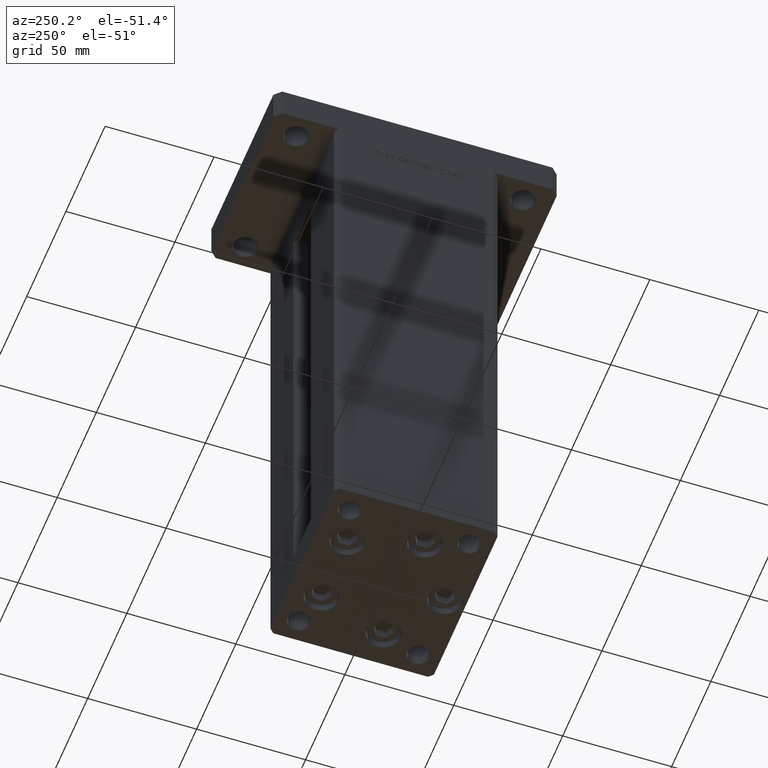
[diagram: clean part render]
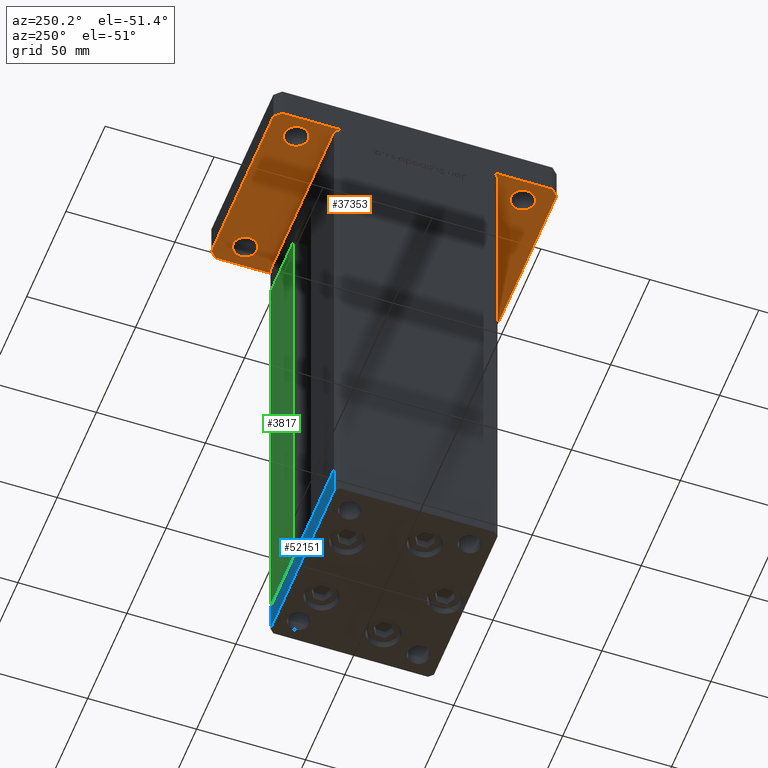
[diagram: same view with three faces highlighted in distinct colors, each labeled with its STEP entity id]
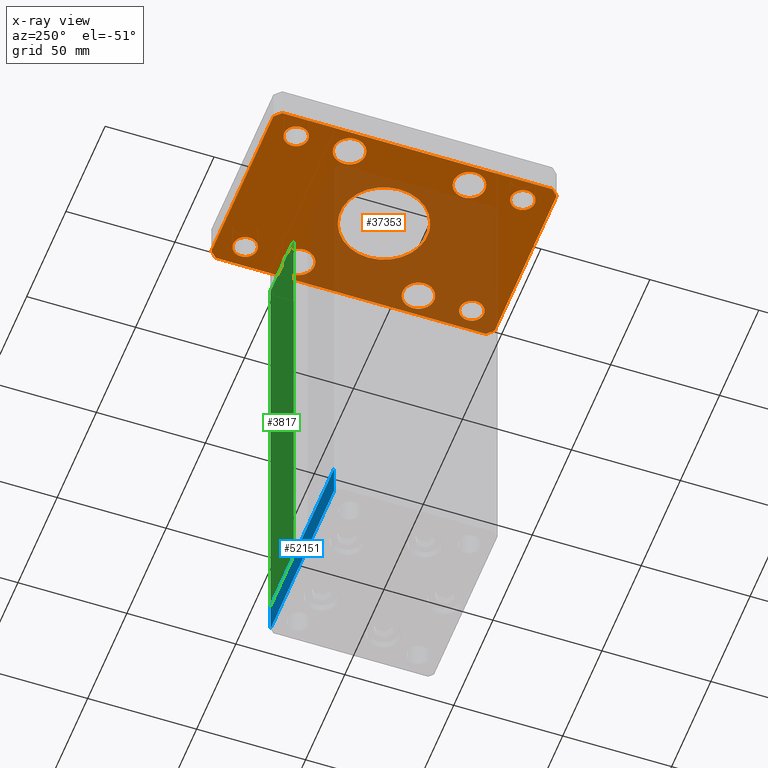
[diagram: x-ray of the same camera — body ghosted, the three highlighted faces saturated]
A machine part, auxiliary view with three faces highlighted in distinct colors.
The next image is the same camera in x-ray (body ghosted, the three faces saturated) — at least one of them is partly hidden behind the body in this view.
Their STEP definitions:

[orange] entity #37353 — the highlighted planar face has unit normal (0, 0, 1).
#340 = CARTESIAN_POINT ( 'NONE',  ( 42.50000000000000000, 62.00000000000000711, 0.000000000000000000 ) ) ;
#404 = ORIENTED_EDGE ( 'NONE', *, *, #51957, .F. ) ;
#481 = FACE_BOUND ( 'NONE', #19865, .T. ) ;
#547 = VERTEX_POINT ( 'NONE', #52257 ) ;
#686 = CARTESIAN_POINT ( 'NONE',  ( 32.50000000000000000, 51.99999999999999289, 0.000000000000000000 ) ) ;
#838 = LINE ( 'NONE', #25535, #50679 ) ;
#1064 = ORIENTED_EDGE ( 'NONE', *, *, #29462, .T. ) ;
#1236 = EDGE_CURVE ( 'NONE', #53336, #14336, #29632, .T. ) ;
#1339 = LINE ( 'NONE', #50941, #39962 ) ;
#1768 = VERTEX_POINT ( 'NONE', #49017 ) ;
#2053 = EDGE_LOOP ( 'NONE', ( #36616, #38374 ) ) ;
#2287 = CARTESIAN_POINT ( 'NONE',  ( -37.99999999999997868, -52.00000000000000711, 0.000000000000000000 ) ) ;
#3173 = VERTEX_POINT ( 'NONE', #51089 ) ;
#3426 = DIRECTION ( 'NONE',  ( 1.000000000000000000, 0.000000000000000000, 0.000000000000000000 ) ) ;
#3427 = CARTESIAN_POINT ( 'NONE',  ( -42.50000000000002132, 62.00000000000000711, 0.000000000000000000 ) ) ;
#4056 = VECTOR ( 'NONE', #52729, 1000.000000000000000 ) ;
#4216 = CARTESIAN_POINT ( 'NONE',  ( 39.75000000000000000, 27.50000000000000000, 0.000000000000000000 ) ) ;
#4369 = ORIENTED_EDGE ( 'NONE', *, *, #1236, .F. ) ;
#4410 = DIRECTION ( 'NONE',  ( 0.000000000000000000, 0.000000000000000000, 1.000000000000000000 ) ) ;
#4551 = FACE_BOUND ( 'NONE', #24015, .T. ) ;
#4695 = CIRCLE ( 'NONE', #46198, 20.00000000000000000 ) ;
#4732 = VERTEX_POINT ( 'NONE', #4216 ) ;
#5001 = VERTEX_POINT ( 'NONE', #33158 ) ;
#5674 = DIRECTION ( 'NONE',  ( -0.7071067811865466846, -0.7071067811865483499, 0.000000000000000000 ) ) ;
#6491 = EDGE_CURVE ( 'NONE', #4732, #37087, #15779, .T. ) ;
#6647 = CARTESIAN_POINT ( 'NONE',  ( 32.50000000000000000, 27.50000000000000000, 0.000000000000000000 ) ) ;
#6673 = DIRECTION ( 'NONE',  ( 0.000000000000000000, 0.000000000000000000, 1.000000000000000000 ) ) ;
#7480 = CARTESIAN_POINT ( 'NONE',  ( -32.50000000000000000, -27.50000000000000000, 0.000000000000000000 ) ) ;
#7625 = CARTESIAN_POINT ( 'NONE',  ( -39.75000000000000711, 27.50000000000000000, 0.000000000000000000 ) ) ;
#7919 = CARTESIAN_POINT ( 'NONE',  ( 37.99999999999999289, 51.99999999999999289, 0.000000000000000000 ) ) ;
#7941 = EDGE_CURVE ( 'NONE', #21670, #11944, #9007, .T. ) ;
#7995 = AXIS2_PLACEMENT_3D ( 'NONE', #7480, #6673, #15081 ) ;
#8135 = ORIENTED_EDGE ( 'NONE', *, *, #6491, .T. ) ;
#8566 = CARTESIAN_POINT ( 'NONE',  ( -32.49999999999997868, -52.00000000000000711, 0.000000000000000000 ) ) ;
#8574 = EDGE_CURVE ( 'NONE', #3173, #10618, #21969, .T. ) ;
#8907 = CARTESIAN_POINT ( 'NONE',  ( 39.50000000000001421, -64.99999999999988631, 0.000000000000000000 ) ) ;
#8965 = EDGE_CURVE ( 'NONE', #1768, #5001, #29743, .T. ) ;
#9007 = LINE ( 'NONE', #28810, #37518 ) ;
#9149 = ORIENTED_EDGE ( 'NONE', *, *, #32134, .F. ) ;
#9278 = DIRECTION ( 'NONE',  ( -1.000000000000000000, 0.000000000000000000, 0.000000000000000000 ) ) ;
#9310 = CARTESIAN_POINT ( 'NONE',  ( 25.25000000000000000, -27.50000000000000000, 0.000000000000000000 ) ) ;
#9397 = EDGE_LOOP ( 'NONE', ( #45120, #28493 ) ) ;
#10311 = DIRECTION ( 'NONE',  ( 0.000000000000000000, 0.000000000000000000, 1.000000000000000000 ) ) ;
#10404 = ORIENTED_EDGE ( 'NONE', *, *, #38225, .T. ) ;
#10524 = CIRCLE ( 'NONE', #45145, 7.249999999999999112 ) ;
#10527 = EDGE_LOOP ( 'NONE', ( #21430, #8135 ) ) ;
#10618 = VERTEX_POINT ( 'NONE', #7919 ) ;
#10631 = CARTESIAN_POINT ( 'NONE',  ( -26.99999999999998579, -52.00000000000000711, 0.000000000000000000 ) ) ;
#10772 = EDGE_CURVE ( 'NONE', #12520, #14753, #4695, .T. ) ;
#10983 = DIRECTION ( 'NONE',  ( 1.000000000000000000, 0.000000000000000000, 0.000000000000000000 ) ) ;
#11502 = EDGE_CURVE ( 'NONE', #547, #27026, #24635, .T. ) ;
#11562 = CARTESIAN_POINT ( 'NONE',  ( 32.49999999999997868, -52.00000000000000711, 0.000000000000000000 ) ) ;
#11578 = DIRECTION ( 'NONE',  ( -1.000000000000000000, 0.000000000000000000, 0.000000000000000000 ) ) ;
#11658 = ORIENTED_EDGE ( 'NONE', *, *, #8965, .T. ) ;
#11944 = VERTEX_POINT ( 'NONE', #27112 ) ;
#11948 = CARTESIAN_POINT ( 'NONE',  ( 42.50000000000000000, 62.00000000000000711, 0.000000000000000000 ) ) ;
#12239 = EDGE_CURVE ( 'NONE', #27026, #547, #27142, .T. ) ;
#12255 = VECTOR ( 'NONE', #39501, 1000.000000000000114 ) ;
#12404 = FACE_BOUND ( 'NONE', #50821, .T. ) ;
#12409 = LINE ( 'NONE', #28692, #43780 ) ;
#12520 = VERTEX_POINT ( 'NONE', #50966 ) ;
#12877 = VERTEX_POINT ( 'NONE', #8907 ) ;
#12933 = VERTEX_POINT ( 'NONE', #51959 ) ;
#12985 = EDGE_CURVE ( 'NONE', #16890, #27870, #53080, .T. ) ;
#13148 = ORIENTED_EDGE ( 'NONE', *, *, #50319, .T. ) ;
#13221 = DIRECTION ( 'NONE',  ( 1.000000000000000000, 0.000000000000000000, -0.000000000000000000 ) ) ;
#13290 = AXIS2_PLACEMENT_3D ( 'NONE', #686, #13425, #50814 ) ;
#13425 = DIRECTION ( 'NONE',  ( 0.000000000000000000, 0.000000000000000000, 1.000000000000000000 ) ) ;
#13442 = AXIS2_PLACEMENT_3D ( 'NONE', #35190, #22724, #26267 ) ;
#14336 = VERTEX_POINT ( 'NONE', #51594 ) ;
#14555 = DIRECTION ( 'NONE',  ( 1.000000000000000000, 0.000000000000000000, 0.000000000000000000 ) ) ;
#14753 = VERTEX_POINT ( 'NONE', #36014 ) ;
#15081 = DIRECTION ( 'NONE',  ( 1.000000000000000000, 0.000000000000000000, 0.000000000000000000 ) ) ;
#15181 = DIRECTION ( 'NONE',  ( 1.000000000000000000, 0.000000000000000000, 0.000000000000000000 ) ) ;
#15628 = AXIS2_PLACEMENT_3D ( 'NONE', #39396, #18003, #22872 ) ;
#15779 = CIRCLE ( 'NONE', #36580, 7.249999999999999112 ) ;
#15919 = EDGE_CURVE ( 'NONE', #27870, #16890, #47131, .T. ) ;
#16052 = CARTESIAN_POINT ( 'NONE',  ( -32.50000000000000000, 52.00000000000000000, 0.000000000000000000 ) ) ;
#16136 = ORIENTED_EDGE ( 'NONE', *, *, #15919, .T. ) ;
#16154 = DIRECTION ( 'NONE',  ( 1.000000000000000000, 0.000000000000000000, 0.000000000000000000 ) ) ;
#16172 = DIRECTION ( 'NONE',  ( 1.000000000000000000, 0.000000000000000000, 0.000000000000000000 ) ) ;
#16756 = PLANE ( 'NONE',  #44283 ) ;
#16877 = ORIENTED_EDGE ( 'NONE', *, *, #22732, .F. ) ;
#16879 = CIRCLE ( 'NONE', #13442, 5.499999999999991118 ) ;
#16890 = VERTEX_POINT ( 'NONE', #7625 ) ;
#17129 = DIRECTION ( 'NONE',  ( 2.238352872228137677E-16, -1.000000000000000000, 0.000000000000000000 ) ) ;
#17443 = DIRECTION ( 'NONE',  ( 1.000000000000000000, 0.000000000000000000, 0.000000000000000000 ) ) ;
#17669 = AXIS2_PLACEMENT_3D ( 'NONE', #16052, #52634, #44781 ) ;
#18003 = DIRECTION ( 'NONE',  ( 0.000000000000000000, 0.000000000000000000, 1.000000000000000000 ) ) ;
#18078 = ORIENTED_EDGE ( 'NONE', *, *, #52818, .F. ) ;
#18309 = EDGE_CURVE ( 'NONE', #10618, #3173, #16879, .T. ) ;
#18358 = CARTESIAN_POINT ( 'NONE',  ( -32.50000000000000711, 27.50000000000000000, 0.000000000000000000 ) ) ;
#19144 = DIRECTION ( 'NONE',  ( 1.000000000000000000, 0.000000000000000000, 0.000000000000000000 ) ) ;
#19257 = DIRECTION ( 'NONE',  ( 0.000000000000000000, 0.000000000000000000, 1.000000000000000000 ) ) ;
#19721 = CARTESIAN_POINT ( 'NONE',  ( -25.25000000000000711, 27.50000000000000000, 0.000000000000000000 ) ) ;
#19860 = EDGE_LOOP ( 'NONE', ( #10404, #11658 ) ) ;
#19865 = EDGE_LOOP ( 'NONE', ( #41527, #23424 ) ) ;
#20193 = AXIS2_PLACEMENT_3D ( 'NONE', #42919, #19257, #15181 ) ;
#20198 = AXIS2_PLACEMENT_3D ( 'NONE', #34913, #27318, #42773 ) ;
#20259 = CARTESIAN_POINT ( 'NONE',  ( 0.000000000000000000, 0.000000000000000000, 0.000000000000000000 ) ) ;
#20284 = ORIENTED_EDGE ( 'NONE', *, *, #42906, .T. ) ;
#20389 = VECTOR ( 'NONE', #45391, 1000.000000000000000 ) ;
#20393 = ORIENTED_EDGE ( 'NONE', *, *, #47693, .T. ) ;
#20825 = FACE_BOUND ( 'NONE', #40674, .T. ) ;
#21430 = ORIENTED_EDGE ( 'NONE', *, *, #32643, .T. ) ;
#21670 = VERTEX_POINT ( 'NONE', #37706 ) ;
#21969 = CIRCLE ( 'NONE', #13290, 5.499999999999991118 ) ;
#22264 = DIRECTION ( 'NONE',  ( 1.000000000000000000, 0.000000000000000000, 0.000000000000000000 ) ) ;
#22340 = ORIENTED_EDGE ( 'NONE', *, *, #7941, .F. ) ;
#22379 = EDGE_LOOP ( 'NONE', ( #47482, #16136 ) ) ;
#22438 = DIRECTION ( 'NONE',  ( 0.000000000000000000, 0.000000000000000000, 1.000000000000000000 ) ) ;
#22724 = DIRECTION ( 'NONE',  ( 0.000000000000000000, 0.000000000000000000, 1.000000000000000000 ) ) ;
#22732 = EDGE_CURVE ( 'NONE', #14336, #41851, #28367, .T. ) ;
#22870 = VERTEX_POINT ( 'NONE', #2287 ) ;
#22872 = DIRECTION ( 'NONE',  ( 1.000000000000000000, 0.000000000000000000, 0.000000000000000000 ) ) ;
#22977 = LINE ( 'NONE', #31359, #12255 ) ;
#23424 = ORIENTED_EDGE ( 'NONE', *, *, #11502, .T. ) ;
#23486 = CARTESIAN_POINT ( 'NONE',  ( 39.50000000000002842, 65.00000000000002842, 0.000000000000000000 ) ) ;
#23689 = AXIS2_PLACEMENT_3D ( 'NONE', #29095, #4410, #17443 ) ;
#24015 = EDGE_LOOP ( 'NONE', ( #34606, #46750 ) ) ;
#24467 = ORIENTED_EDGE ( 'NONE', *, *, #51462, .F. ) ;
#24635 = CIRCLE ( 'NONE', #50580, 7.249999999999999112 ) ;
#24781 = DIRECTION ( 'NONE',  ( 0.000000000000000000, 0.000000000000000000, 1.000000000000000000 ) ) ;
#25023 = DIRECTION ( 'NONE',  ( 0.7071067811865483499, -0.7071067811865466846, 0.000000000000000000 ) ) ;
#25535 = CARTESIAN_POINT ( 'NONE',  ( -42.50000000000002132, 62.00000000000000711, 0.000000000000000000 ) ) ;
#25634 = VERTEX_POINT ( 'NONE', #38176 ) ;
#26267 = DIRECTION ( 'NONE',  ( 1.000000000000000000, 0.000000000000000000, 0.000000000000000000 ) ) ;
#26485 = AXIS2_PLACEMENT_3D ( 'NONE', #11562, #10311, #3426 ) ;
#26708 = CARTESIAN_POINT ( 'NONE',  ( -32.50000000000000000, 52.00000000000000000, 0.000000000000000000 ) ) ;
#27026 = VERTEX_POINT ( 'NONE', #9310 ) ;
#27112 = CARTESIAN_POINT ( 'NONE',  ( -39.50000000000000000, -65.00000000000000000, 0.000000000000000000 ) ) ;
#27142 = CIRCLE ( 'NONE', #40083, 7.249999999999999112 ) ;
#27236 = VERTEX_POINT ( 'NONE', #53162 ) ;
#27259 = CARTESIAN_POINT ( 'NONE',  ( -39.50000000000003553, 65.00000000000000000, 0.000000000000000000 ) ) ;
#27289 = DIRECTION ( 'NONE',  ( 0.000000000000000000, 0.000000000000000000, 1.000000000000000000 ) ) ;
#27304 = DIRECTION ( 'NONE',  ( 0.000000000000000000, 0.000000000000000000, 1.000000000000000000 ) ) ;
#27318 = DIRECTION ( 'NONE',  ( 0.000000000000000000, 0.000000000000000000, 1.000000000000000000 ) ) ;
#27870 = VERTEX_POINT ( 'NONE', #19721 ) ;
#28053 = CIRCLE ( 'NONE', #40189, 20.00000000000000000 ) ;
#28251 = CIRCLE ( 'NONE', #47316, 5.499999999999994671 ) ;
#28367 = LINE ( 'NONE', #23486, #4056 ) ;
#28493 = ORIENTED_EDGE ( 'NONE', *, *, #10772, .F. ) ;
#28622 = ORIENTED_EDGE ( 'NONE', *, *, #37173, .F. ) ;
#28687 = FACE_OUTER_BOUND ( 'NONE', #42948, .T. ) ;
#28692 = CARTESIAN_POINT ( 'NONE',  ( 42.50000000000000000, -61.99999999999988631, 0.000000000000000000 ) ) ;
#28810 = CARTESIAN_POINT ( 'NONE',  ( -42.49999999999999289, -62.00000000000001421, 0.000000000000000000 ) ) ;
#29095 = CARTESIAN_POINT ( 'NONE',  ( -32.50000000000000000, -27.50000000000000000, 0.000000000000000000 ) ) ;
#29462 = EDGE_CURVE ( 'NONE', #12933, #34398, #33835, .T. ) ;
#29503 = CARTESIAN_POINT ( 'NONE',  ( -27.00000000000000711, 52.00000000000000000, 0.000000000000000000 ) ) ;
#29632 = LINE ( 'NONE', #340, #35574 ) ;
#29743 = CIRCLE ( 'NONE', #23689, 7.249999999999999112 ) ;
#30489 = DIRECTION ( 'NONE',  ( 0.000000000000000000, 0.000000000000000000, 1.000000000000000000 ) ) ;
#30798 = AXIS2_PLACEMENT_3D ( 'NONE', #8566, #45704, #16172 ) ;
#31359 = CARTESIAN_POINT ( 'NONE',  ( 39.50000000000001421, -64.99999999999988631, 0.000000000000000000 ) ) ;
#32027 = CARTESIAN_POINT ( 'NONE',  ( 37.99999999999997868, -52.00000000000000711, 0.000000000000000000 ) ) ;
#32134 = EDGE_CURVE ( 'NONE', #12877, #25634, #22977, .T. ) ;
#32643 = EDGE_CURVE ( 'NONE', #37087, #4732, #10524, .T. ) ;
#33158 = CARTESIAN_POINT ( 'NONE',  ( -39.75000000000000000, -27.50000000000000000, 0.000000000000000000 ) ) ;
#33820 = FACE_BOUND ( 'NONE', #2053, .T. ) ;
#33835 = CIRCLE ( 'NONE', #15628, 5.499999999999998224 ) ;
#34398 = VERTEX_POINT ( 'NONE', #32027 ) ;
#34606 = ORIENTED_EDGE ( 'NONE', *, *, #47853, .T. ) ;
#34913 = CARTESIAN_POINT ( 'NONE',  ( -32.50000000000000711, 27.50000000000000000, 0.000000000000000000 ) ) ;
#34930 = VERTEX_POINT ( 'NONE', #3427 ) ;
#34948 = CIRCLE ( 'NONE', #17669, 5.499999999999994671 ) ;
#35190 = CARTESIAN_POINT ( 'NONE',  ( 32.50000000000000000, 51.99999999999999289, 0.000000000000000000 ) ) ;
#35574 = VECTOR ( 'NONE', #45607, 1000.000000000000000 ) ;
#35931 = DIRECTION ( 'NONE',  ( 0.000000000000000000, 0.000000000000000000, 1.000000000000000000 ) ) ;
#36014 = CARTESIAN_POINT ( 'NONE',  ( -20.00000000000000000, 0.000000000000000000, 0.000000000000000000 ) ) ;
#36580 = AXIS2_PLACEMENT_3D ( 'NONE', #6647, #35931, #10983 ) ;
#36616 = ORIENTED_EDGE ( 'NONE', *, *, #8574, .T. ) ;
#37087 = VERTEX_POINT ( 'NONE', #42547 ) ;
#37173 = EDGE_CURVE ( 'NONE', #41851, #34930, #1339, .T. ) ;
#37353 = ADVANCED_FACE ( 'NONE', ( #37904, #28687, #4551, #33820, #12404, #40873, #481, #45201, #53335, #20825 ), #16756, .F. ) ;
#37368 = DIRECTION ( 'NONE',  ( 0.000000000000000000, 1.000000000000000000, 0.000000000000000000 ) ) ;
#37518 = VECTOR ( 'NONE', #25023, 1000.000000000000000 ) ;
#37706 = CARTESIAN_POINT ( 'NONE',  ( -42.49999999999999289, -62.00000000000001421, 0.000000000000000000 ) ) ;
#37904 = FACE_BOUND ( 'NONE', #9397, .T. ) ;
#38015 = VERTEX_POINT ( 'NONE', #29503 ) ;
#38021 = DIRECTION ( 'NONE',  ( 0.000000000000000000, 0.000000000000000000, -1.000000000000000000 ) ) ;
#38176 = CARTESIAN_POINT ( 'NONE',  ( 42.50000000000000000, -61.99999999999988631, 0.000000000000000000 ) ) ;
#38225 = EDGE_CURVE ( 'NONE', #5001, #1768, #48663, .T. ) ;
#38374 = ORIENTED_EDGE ( 'NONE', *, *, #18309, .T. ) ;
#39396 = CARTESIAN_POINT ( 'NONE',  ( 32.49999999999997868, -52.00000000000000711, 0.000000000000000000 ) ) ;
#39501 = DIRECTION ( 'NONE',  ( 0.7071067811865459074, 0.7071067811865491270, 0.000000000000000000 ) ) ;
#39962 = VECTOR ( 'NONE', #5674, 1000.000000000000000 ) ;
#40083 = AXIS2_PLACEMENT_3D ( 'NONE', #49221, #27304, #16154 ) ;
#40189 = AXIS2_PLACEMENT_3D ( 'NONE', #20259, #43843, #11578 ) ;
#40637 = EDGE_CURVE ( 'NONE', #51333, #22870, #43566, .T. ) ;
#40674 = EDGE_LOOP ( 'NONE', ( #1064, #20393 ) ) ;
#40873 = FACE_BOUND ( 'NONE', #19860, .T. ) ;
#41527 = ORIENTED_EDGE ( 'NONE', *, *, #12239, .T. ) ;
#41597 = LINE ( 'NONE', #42148, #20389 ) ;
#41806 = CARTESIAN_POINT ( 'NONE',  ( 0.000000000000000000, 0.000000000000000000, 0.000000000000000000 ) ) ;
#41851 = VERTEX_POINT ( 'NONE', #27259 ) ;
#42148 = CARTESIAN_POINT ( 'NONE',  ( -39.50000000000000000, -65.00000000000000000, 0.000000000000000000 ) ) ;
#42547 = CARTESIAN_POINT ( 'NONE',  ( 25.25000000000000000, 27.50000000000000000, 0.000000000000000000 ) ) ;
#42773 = DIRECTION ( 'NONE',  ( 1.000000000000000000, 0.000000000000000000, 0.000000000000000000 ) ) ;
#42906 = EDGE_CURVE ( 'NONE', #38015, #27236, #34948, .T. ) ;
#42919 = CARTESIAN_POINT ( 'NONE',  ( -32.49999999999997868, -52.00000000000000711, 0.000000000000000000 ) ) ;
#42948 = EDGE_LOOP ( 'NONE', ( #404, #22340, #24467, #28622, #16877, #4369, #18078, #9149 ) ) ;
#43566 = CIRCLE ( 'NONE', #20193, 5.499999999999994671 ) ;
#43741 = DIRECTION ( 'NONE',  ( 1.000000000000000000, 0.000000000000000000, 0.000000000000000000 ) ) ;
#43780 = VECTOR ( 'NONE', #37368, 1000.000000000000000 ) ;
#43843 = DIRECTION ( 'NONE',  ( 0.000000000000000000, 0.000000000000000000, -1.000000000000000000 ) ) ;
#43997 = EDGE_CURVE ( 'NONE', #14753, #12520, #28053, .T. ) ;
#44283 = AXIS2_PLACEMENT_3D ( 'NONE', #49538, #50084, #13221 ) ;
#44781 = DIRECTION ( 'NONE',  ( 1.000000000000000000, 0.000000000000000000, 0.000000000000000000 ) ) ;
#45120 = ORIENTED_EDGE ( 'NONE', *, *, #43997, .F. ) ;
#45145 = AXIS2_PLACEMENT_3D ( 'NONE', #49690, #24781, #22264 ) ;
#45201 = FACE_BOUND ( 'NONE', #10527, .T. ) ;
#45391 = DIRECTION ( 'NONE',  ( 1.000000000000000000, 1.405345600791337191E-15, 0.000000000000000000 ) ) ;
#45498 = CIRCLE ( 'NONE', #30798, 5.499999999999994671 ) ;
#45607 = DIRECTION ( 'NONE',  ( -0.7071067811865417996, 0.7071067811865532349, 0.000000000000000000 ) ) ;
#45704 = DIRECTION ( 'NONE',  ( 0.000000000000000000, 0.000000000000000000, 1.000000000000000000 ) ) ;
#46198 = AXIS2_PLACEMENT_3D ( 'NONE', #41806, #38021, #9278 ) ;
#46750 = ORIENTED_EDGE ( 'NONE', *, *, #40637, .T. ) ;
#47131 = CIRCLE ( 'NONE', #53189, 7.249999999999999112 ) ;
#47239 = CIRCLE ( 'NONE', #26485, 5.499999999999998224 ) ;
#47316 = AXIS2_PLACEMENT_3D ( 'NONE', #26708, #30489, #43741 ) ;
#47482 = ORIENTED_EDGE ( 'NONE', *, *, #12985, .T. ) ;
#47693 = EDGE_CURVE ( 'NONE', #34398, #12933, #47239, .T. ) ;
#47853 = EDGE_CURVE ( 'NONE', #22870, #51333, #45498, .T. ) ;
#48663 = CIRCLE ( 'NONE', #7995, 7.249999999999999112 ) ;
#49017 = CARTESIAN_POINT ( 'NONE',  ( -25.25000000000000000, -27.50000000000000000, 0.000000000000000000 ) ) ;
#49221 = CARTESIAN_POINT ( 'NONE',  ( 32.50000000000000000, -27.50000000000000000, 0.000000000000000000 ) ) ;
#49538 = CARTESIAN_POINT ( 'NONE',  ( 0.000000000000000000, 0.000000000000000000, 0.000000000000000000 ) ) ;
#49690 = CARTESIAN_POINT ( 'NONE',  ( 32.50000000000000000, 27.50000000000000000, 0.000000000000000000 ) ) ;
#50084 = DIRECTION ( 'NONE',  ( 0.000000000000000000, 0.000000000000000000, 1.000000000000000000 ) ) ;
#50319 = EDGE_CURVE ( 'NONE', #27236, #38015, #28251, .T. ) ;
#50580 = AXIS2_PLACEMENT_3D ( 'NONE', #52719, #27289, #19144 ) ;
#50679 = VECTOR ( 'NONE', #17129, 1000.000000000000000 ) ;
#50814 = DIRECTION ( 'NONE',  ( 1.000000000000000000, 0.000000000000000000, 0.000000000000000000 ) ) ;
#50821 = EDGE_LOOP ( 'NONE', ( #13148, #20284 ) ) ;
#50941 = CARTESIAN_POINT ( 'NONE',  ( -39.50000000000003553, 65.00000000000000000, 0.000000000000000000 ) ) ;
#50966 = CARTESIAN_POINT ( 'NONE',  ( 20.00000000000000000, 2.449293598294706513E-15, 0.000000000000000000 ) ) ;
#51089 = CARTESIAN_POINT ( 'NONE',  ( 27.00000000000001421, 51.99999999999999289, 0.000000000000000000 ) ) ;
#51333 = VERTEX_POINT ( 'NONE', #10631 ) ;
#51462 = EDGE_CURVE ( 'NONE', #34930, #21670, #838, .T. ) ;
#51594 = CARTESIAN_POINT ( 'NONE',  ( 39.50000000000002842, 65.00000000000002842, 0.000000000000000000 ) ) ;
#51957 = EDGE_CURVE ( 'NONE', #11944, #12877, #41597, .T. ) ;
#51959 = CARTESIAN_POINT ( 'NONE',  ( 26.99999999999998579, -52.00000000000000711, 0.000000000000000000 ) ) ;
#52257 = CARTESIAN_POINT ( 'NONE',  ( 39.75000000000000000, -27.50000000000000000, 0.000000000000000000 ) ) ;
#52634 = DIRECTION ( 'NONE',  ( 0.000000000000000000, 0.000000000000000000, 1.000000000000000000 ) ) ;
#52719 = CARTESIAN_POINT ( 'NONE',  ( 32.50000000000000000, -27.50000000000000000, 0.000000000000000000 ) ) ;
#52729 = DIRECTION ( 'NONE',  ( -1.000000000000000000, -3.513364001978340512E-16, 0.000000000000000000 ) ) ;
#52818 = EDGE_CURVE ( 'NONE', #25634, #53336, #12409, .T. ) ;
#53080 = CIRCLE ( 'NONE', #20198, 7.249999999999999112 ) ;
#53162 = CARTESIAN_POINT ( 'NONE',  ( -38.00000000000000000, 52.00000000000000000, 0.000000000000000000 ) ) ;
#53189 = AXIS2_PLACEMENT_3D ( 'NONE', #18358, #22438, #14555 ) ;
#53335 = FACE_BOUND ( 'NONE', #22379, .T. ) ;
#53336 = VERTEX_POINT ( 'NONE', #11948 ) ;

[blue] entity #52151 — the highlighted planar face has unit normal (0, 1, 0).
#851 = DIRECTION ( 'NONE',  ( 0.000000000000000000, 0.000000000000000000, 1.000000000000000000 ) ) ;
#2209 = CARTESIAN_POINT ( 'NONE',  ( -40.50000000000000711, 37.49999999999997868, 0.000000000000000000 ) ) ;
#4437 = CARTESIAN_POINT ( 'NONE',  ( 40.49999999999991473, 37.50000000000000711, -15.00000000000000000 ) ) ;
#5687 = VECTOR ( 'NONE', #17396, 1000.000000000000000 ) ;
#5734 = ORIENTED_EDGE ( 'NONE', *, *, #48521, .T. ) ;
#7921 = DIRECTION ( 'NONE',  ( -1.000000000000000000, -3.426614273534436165E-16, 0.000000000000000000 ) ) ;
#11187 = DIRECTION ( 'NONE',  ( -3.426614273534436165E-16, 1.000000000000000000, 0.000000000000000000 ) ) ;
#12784 = DIRECTION ( 'NONE',  ( -1.000000000000000000, -3.426614273534436165E-16, 0.000000000000000000 ) ) ;
#13324 = VECTOR ( 'NONE', #20995, 1000.000000000000000 ) ;
#13854 = CARTESIAN_POINT ( 'NONE',  ( 40.49999999999991473, 37.50000000000000711, -15.00000000000000000 ) ) ;
#15265 = CARTESIAN_POINT ( 'NONE',  ( 40.49999999999991473, 37.50000000000000711, -15.00000000000000000 ) ) ;
#15465 = EDGE_LOOP ( 'NONE', ( #40614, #43537, #5734, #16965 ) ) ;
#16620 = VERTEX_POINT ( 'NONE', #38444 ) ;
#16965 = ORIENTED_EDGE ( 'NONE', *, *, #42316, .T. ) ;
#17133 = LINE ( 'NONE', #30133, #5687 ) ;
#17396 = DIRECTION ( 'NONE',  ( -1.000000000000000000, -3.426614273534436165E-16, 0.000000000000000000 ) ) ;
#20141 = PLANE ( 'NONE',  #23113 ) ;
#20394 = VECTOR ( 'NONE', #12784, 1000.000000000000000 ) ;
#20995 = DIRECTION ( 'NONE',  ( 0.000000000000000000, 0.000000000000000000, 1.000000000000000000 ) ) ;
#21548 = VERTEX_POINT ( 'NONE', #2209 ) ;
#23113 = AXIS2_PLACEMENT_3D ( 'NONE', #15265, #11187, #7921 ) ;
#26697 = VERTEX_POINT ( 'NONE', #42974 ) ;
#29934 = LINE ( 'NONE', #4437, #13324 ) ;
#30133 = CARTESIAN_POINT ( 'NONE',  ( 40.49999999999991473, 37.50000000000000711, 0.000000000000000000 ) ) ;
#33389 = LINE ( 'NONE', #13854, #20394 ) ;
#33410 = VERTEX_POINT ( 'NONE', #53464 ) ;
#35834 = VECTOR ( 'NONE', #851, 1000.000000000000000 ) ;
#38444 = CARTESIAN_POINT ( 'NONE',  ( 40.49999999999991473, 37.50000000000000711, 0.000000000000000000 ) ) ;
#40614 = ORIENTED_EDGE ( 'NONE', *, *, #47686, .F. ) ;
#41791 = LINE ( 'NONE', #50188, #35834 ) ;
#42114 = EDGE_CURVE ( 'NONE', #26697, #16620, #29934, .T. ) ;
#42316 = EDGE_CURVE ( 'NONE', #33410, #21548, #41791, .T. ) ;
#42974 = CARTESIAN_POINT ( 'NONE',  ( 40.49999999999991473, 37.50000000000000711, -15.00000000000000000 ) ) ;
#43537 = ORIENTED_EDGE ( 'NONE', *, *, #42114, .F. ) ;
#43988 = FACE_OUTER_BOUND ( 'NONE', #15465, .T. ) ;
#47686 = EDGE_CURVE ( 'NONE', #16620, #21548, #17133, .T. ) ;
#48521 = EDGE_CURVE ( 'NONE', #26697, #33410, #33389, .T. ) ;
#50188 = CARTESIAN_POINT ( 'NONE',  ( -40.50000000000000711, 37.49999999999997868, -15.00000000000000000 ) ) ;
#52151 = ADVANCED_FACE ( 'NONE', ( #43988 ), #20141, .T. ) ;
#53464 = CARTESIAN_POINT ( 'NONE',  ( -40.50000000000000711, 37.49999999999997868, -15.00000000000000000 ) ) ;

[green] entity #3817 — the highlighted planar face has unit normal (-0, -1, 0).
#2179 = DIRECTION ( 'NONE',  ( -1.000000000000000000, 2.372271420139223331E-16, 0.000000000000000000 ) ) ;
#2839 = CARTESIAN_POINT ( 'NONE',  ( 40.50000000000000000, 37.50000000000000711, 0.000000000000000000 ) ) ;
#3817 = ADVANCED_FACE ( 'NONE', ( #17173 ), #46428, .F. ) ;
#5072 = DIRECTION ( 'NONE',  ( -0.000000000000000000, -0.000000000000000000, -1.000000000000000000 ) ) ;
#8212 = ORIENTED_EDGE ( 'NONE', *, *, #20878, .T. ) ;
#9845 = LINE ( 'NONE', #51033, #25140 ) ;
#13088 = VERTEX_POINT ( 'NONE', #40028 ) ;
#14041 = EDGE_CURVE ( 'NONE', #13088, #52959, #35384, .T. ) ;
#14169 = VECTOR ( 'NONE', #43770, 1000.000000000000000 ) ;
#14863 = AXIS2_PLACEMENT_3D ( 'NONE', #25032, #29363, #16340 ) ;
#16340 = DIRECTION ( 'NONE',  ( 1.000000000000000000, -2.372271420139223824E-16, 0.000000000000000000 ) ) ;
#17173 = FACE_OUTER_BOUND ( 'NONE', #23958, .T. ) ;
#20878 = EDGE_CURVE ( 'NONE', #52959, #45340, #37899, .T. ) ;
#21378 = CARTESIAN_POINT ( 'NONE',  ( 40.50000000000000000, 37.50000000000000711, 218.5000000000000000 ) ) ;
#23611 = ORIENTED_EDGE ( 'NONE', *, *, #28425, .T. ) ;
#23958 = EDGE_LOOP ( 'NONE', ( #38936, #23611, #29744, #8212 ) ) ;
#25032 = CARTESIAN_POINT ( 'NONE',  ( -11.25000000000000000, 37.50000000000000000, 218.5000000000000000 ) ) ;
#25140 = VECTOR ( 'NONE', #34254, 1000.000000000000000 ) ;
#26612 = LINE ( 'NONE', #34721, #44640 ) ;
#28425 = EDGE_CURVE ( 'NONE', #38613, #13088, #9845, .T. ) ;
#29363 = DIRECTION ( 'NONE',  ( -2.372271420139223824E-16, -1.000000000000000000, 0.000000000000000000 ) ) ;
#29744 = ORIENTED_EDGE ( 'NONE', *, *, #14041, .T. ) ;
#32538 = VECTOR ( 'NONE', #5072, 1000.000000000000000 ) ;
#34254 = DIRECTION ( 'NONE',  ( -0.000000000000000000, -0.000000000000000000, 1.000000000000000000 ) ) ;
#34721 = CARTESIAN_POINT ( 'NONE',  ( -11.25000000000000000, 37.50000000000000000, 0.000000000000000000 ) ) ;
#35384 = LINE ( 'NONE', #51901, #14169 ) ;
#37899 = LINE ( 'NONE', #38153, #32538 ) ;
#38153 = CARTESIAN_POINT ( 'NONE',  ( 40.50000000000000000, 37.50000000000000711, 218.5000000000000000 ) ) ;
#38613 = VERTEX_POINT ( 'NONE', #47466 ) ;
#38936 = ORIENTED_EDGE ( 'NONE', *, *, #48584, .T. ) ;
#40028 = CARTESIAN_POINT ( 'NONE',  ( 11.24999999999999289, 37.50000000000000000, 218.5000000000000000 ) ) ;
#43770 = DIRECTION ( 'NONE',  ( 1.000000000000000000, 0.000000000000000000, 0.000000000000000000 ) ) ;
#44640 = VECTOR ( 'NONE', #2179, 1000.000000000000000 ) ;
#45340 = VERTEX_POINT ( 'NONE', #2839 ) ;
#46428 = PLANE ( 'NONE',  #14863 ) ;
#47466 = CARTESIAN_POINT ( 'NONE',  ( 11.25000000000000000, 37.50000000000000000, 0.000000000000000000 ) ) ;
#48584 = EDGE_CURVE ( 'NONE', #45340, #38613, #26612, .T. ) ;
#51033 = CARTESIAN_POINT ( 'NONE',  ( 11.25000000000000000, 37.50000000000000000, 0.000000000000000000 ) ) ;
#51901 = CARTESIAN_POINT ( 'NONE',  ( -11.25000000000000000, 37.50000000000000000, 218.5000000000000000 ) ) ;
#52959 = VERTEX_POINT ( 'NONE', #21378 ) ;